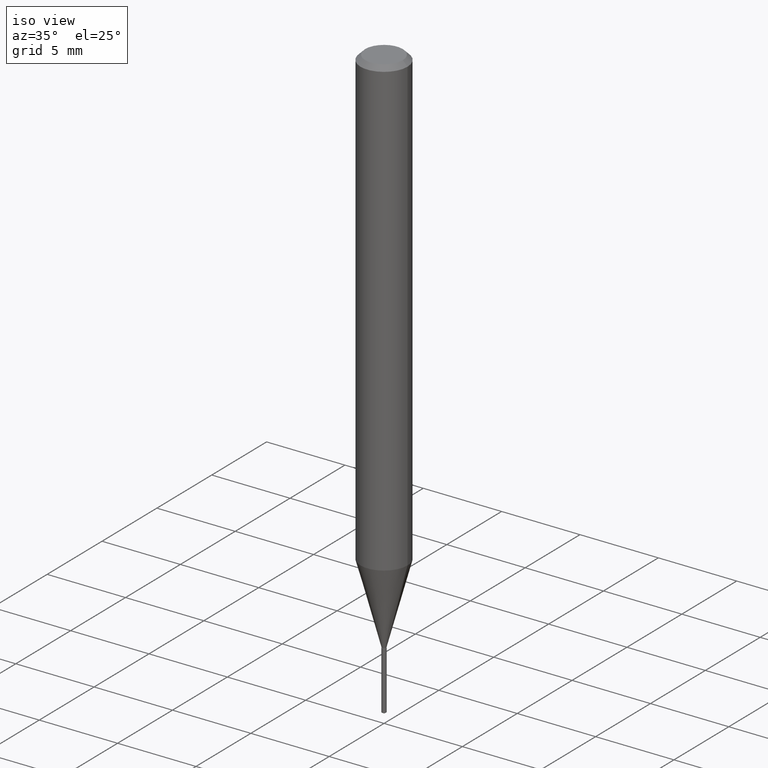
[diagram: clean part render]
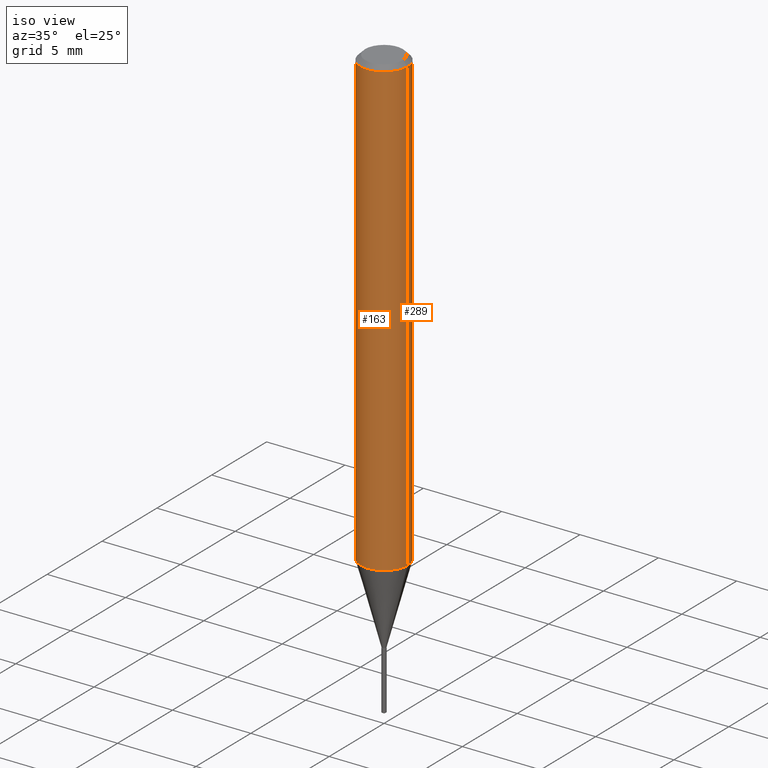
[diagram: same view with one multi-face feature highlighted, each face labeled with its STEP entity id]
A machine part, iso view. The highlighted faces form ONE feature: a constant-radius fillet chain: 2 tangent blend faces with common blend radius 1.4999 mm. The faces share edges in the B-rep.
Their STEP definitions:
[1] entity #163 (Cylinder):
#20 = CARTESIAN_POINT ( 'NONE',  ( 2.798355503914224078E-29, -3.995310018534680444E-15, -1.144302269093172786 ) ) ;
#39 = DIRECTION ( 'NONE',  ( -2.445468806185136597E-29, 3.491481338843145583E-15, 1.000000000000000000 ) ) ;
#40 = CARTESIAN_POINT ( 'NONE',  ( 0.000000000000000000, 0.000000000000000000, 0.000000000000000000 ) ) ;
#41 = DIRECTION ( 'NONE',  ( 1.000000000000000000, -6.982962677686266711E-15, 4.876176775795936353E-29 ) ) ;
#42 = CIRCLE ( 'NONE', #274, 0.05904999999999999832 ) ;
#48 = DIRECTION ( 'NONE',  ( -2.445468806185136877E-29, 3.491481338843145188E-15, 1.000000000000000000 ) ) ;
#72 = EDGE_CURVE ( 'NONE', #129, #396, #42, .T. ) ;
#81 = VERTEX_POINT ( 'NONE', #261 ) ;
#86 = AXIS2_PLACEMENT_3D ( 'NONE', #40, #297, #41 ) ;
#90 = FACE_OUTER_BOUND ( 'NONE', #460, .T. ) ;
#94 = CARTESIAN_POINT ( 'NONE',  ( -0.05905000000000013710, -3.575734533068340951E-15, -1.144302269093172786 ) ) ;
#129 = VERTEX_POINT ( 'NONE', #301 ) ;
#131 = AXIS2_PLACEMENT_3D ( 'NONE', #20, #247, #385 ) ;
#162 = LINE ( 'NONE', #311, #400 ) ;
#163 = ADVANCED_FACE ( 'NONE', ( #90 ), #376, .T. ) ;
#182 = ORIENTED_EDGE ( 'NONE', *, *, #341, .T. ) ;
#223 = ORIENTED_EDGE ( 'NONE', *, *, #453, .F. ) ;
#224 = CIRCLE ( 'NONE', #131, 0.05905000000000013710 ) ;
#225 = EDGE_CURVE ( 'NONE', #81, #396, #395, .T. ) ;
#247 = DIRECTION ( 'NONE',  ( -2.445468806185136597E-29, 3.491481338843145583E-15, 1.000000000000000000 ) ) ;
#261 = CARTESIAN_POINT ( 'NONE',  ( 0.05905000000000013710, -4.407653964652056153E-15, -1.144302269093172786 ) ) ;
#265 = ORIENTED_EDGE ( 'NONE', *, *, #72, .F. ) ;
#271 = CARTESIAN_POINT ( 'NONE',  ( 0.05905000000000006771, -4.123439461173745257E-16, 2.879382386107503723E-30 ) ) ;
#274 = AXIS2_PLACEMENT_3D ( 'NONE', #454, #39, #381 ) ;
#297 = DIRECTION ( 'NONE',  ( -2.445468806185136597E-29, 3.491481338843145583E-15, 1.000000000000000000 ) ) ;
#301 = CARTESIAN_POINT ( 'NONE',  ( -0.05904999999999999832, -1.598696721106868410E-15, -0.01181000000000007044 ) ) ;
#311 = CARTESIAN_POINT ( 'NONE',  ( -0.05905000000000006771, 4.195754854663396409E-16, -2.904631170795525045E-30 ) ) ;
#328 = ORIENTED_EDGE ( 'NONE', *, *, #225, .T. ) ;
#341 = EDGE_CURVE ( 'NONE', #413, #81, #224, .T. ) ;
#376 = CYLINDRICAL_SURFACE ( 'NONE', #86, 0.05905000000000006771 ) ;
#381 = DIRECTION ( 'NONE',  ( 1.000000000000000000, -6.982962677686266711E-15, 0.000000000000000000 ) ) ;
#385 = DIRECTION ( 'NONE',  ( 1.000000000000000000, -6.982962677686264344E-15, 0.000000000000000000 ) ) ;
#395 = LINE ( 'NONE', #271, #448 ) ;
#396 = VERTEX_POINT ( 'NONE', #426 ) ;
#400 = VECTOR ( 'NONE', #472, 39.37007874015748143 ) ;
#413 = VERTEX_POINT ( 'NONE', #94 ) ;
#426 = CARTESIAN_POINT ( 'NONE',  ( 0.05904999999999999832, -4.535783407291118600E-16, -0.01181000000000007044 ) ) ;
#448 = VECTOR ( 'NONE', #48, 39.37007874015748143 ) ;
#453 = EDGE_CURVE ( 'NONE', #413, #129, #162, .T. ) ;
#454 = CARTESIAN_POINT ( 'NONE',  ( 2.888098660104663766E-31, -4.123439461173779647E-17, -0.01181000000000007044 ) ) ;
#460 = EDGE_LOOP ( 'NONE', ( #223, #182, #328, #265 ) ) ;
#472 = DIRECTION ( 'NONE',  ( -2.445468806185136877E-29, 3.491481338843145188E-15, 1.000000000000000000 ) ) ;
[2] entity #289 (Cylinder):
#15 = ORIENTED_EDGE ( 'NONE', *, *, #225, .F. ) ;
#19 = CIRCLE ( 'NONE', #147, 0.05905000000000013710 ) ;
#36 = FACE_OUTER_BOUND ( 'NONE', #409, .T. ) ;
#48 = DIRECTION ( 'NONE',  ( -2.445468806185136877E-29, 3.491481338843145188E-15, 1.000000000000000000 ) ) ;
#81 = VERTEX_POINT ( 'NONE', #261 ) ;
#94 = CARTESIAN_POINT ( 'NONE',  ( -0.05905000000000013710, -3.575734533068340951E-15, -1.144302269093172786 ) ) ;
#120 = EDGE_CURVE ( 'NONE', #396, #129, #239, .T. ) ;
#129 = VERTEX_POINT ( 'NONE', #301 ) ;
#147 = AXIS2_PLACEMENT_3D ( 'NONE', #477, #394, #278 ) ;
#156 = DIRECTION ( 'NONE',  ( 1.000000000000000000, -6.982962677686266711E-15, 0.000000000000000000 ) ) ;
#162 = LINE ( 'NONE', #311, #400 ) ;
#186 = CYLINDRICAL_SURFACE ( 'NONE', #322, 0.05905000000000006771 ) ;
#225 = EDGE_CURVE ( 'NONE', #81, #396, #395, .T. ) ;
#239 = CIRCLE ( 'NONE', #489, 0.05904999999999999832 ) ;
#256 = DIRECTION ( 'NONE',  ( -2.445468806185136597E-29, 3.491481338843145583E-15, 1.000000000000000000 ) ) ;
#261 = CARTESIAN_POINT ( 'NONE',  ( 0.05905000000000013710, -4.407653964652056153E-15, -1.144302269093172786 ) ) ;
#268 = DIRECTION ( 'NONE',  ( -2.445468806185136597E-29, 3.491481338843145583E-15, 1.000000000000000000 ) ) ;
#271 = CARTESIAN_POINT ( 'NONE',  ( 0.05905000000000006771, -4.123439461173745257E-16, 2.879382386107503723E-30 ) ) ;
#278 = DIRECTION ( 'NONE',  ( 1.000000000000000000, -6.982962677686264344E-15, 0.000000000000000000 ) ) ;
#289 = ADVANCED_FACE ( 'NONE', ( #36 ), #186, .T. ) ;
#291 = ORIENTED_EDGE ( 'NONE', *, *, #453, .T. ) ;
#301 = CARTESIAN_POINT ( 'NONE',  ( -0.05904999999999999832, -1.598696721106868410E-15, -0.01181000000000007044 ) ) ;
#311 = CARTESIAN_POINT ( 'NONE',  ( -0.05905000000000006771, 4.195754854663396409E-16, -2.904631170795525045E-30 ) ) ;
#312 = ORIENTED_EDGE ( 'NONE', *, *, #120, .F. ) ;
#322 = AXIS2_PLACEMENT_3D ( 'NONE', #451, #256, #441 ) ;
#380 = EDGE_CURVE ( 'NONE', #81, #413, #19, .T. ) ;
#394 = DIRECTION ( 'NONE',  ( -2.445468806185136597E-29, 3.491481338843145583E-15, 1.000000000000000000 ) ) ;
#395 = LINE ( 'NONE', #271, #448 ) ;
#396 = VERTEX_POINT ( 'NONE', #426 ) ;
#400 = VECTOR ( 'NONE', #472, 39.37007874015748143 ) ;
#409 = EDGE_LOOP ( 'NONE', ( #490, #291, #312, #15 ) ) ;
#413 = VERTEX_POINT ( 'NONE', #94 ) ;
#417 = CARTESIAN_POINT ( 'NONE',  ( 2.888098660104663766E-31, -4.123439461173779647E-17, -0.01181000000000007044 ) ) ;
#426 = CARTESIAN_POINT ( 'NONE',  ( 0.05904999999999999832, -4.535783407291118600E-16, -0.01181000000000007044 ) ) ;
#441 = DIRECTION ( 'NONE',  ( 1.000000000000000000, -6.982962677686266711E-15, 4.876176775795936353E-29 ) ) ;
#448 = VECTOR ( 'NONE', #48, 39.37007874015748143 ) ;
#451 = CARTESIAN_POINT ( 'NONE',  ( 0.000000000000000000, 0.000000000000000000, 0.000000000000000000 ) ) ;
#453 = EDGE_CURVE ( 'NONE', #413, #129, #162, .T. ) ;
#472 = DIRECTION ( 'NONE',  ( -2.445468806185136877E-29, 3.491481338843145188E-15, 1.000000000000000000 ) ) ;
#477 = CARTESIAN_POINT ( 'NONE',  ( 2.798355503914224078E-29, -3.995310018534680444E-15, -1.144302269093172786 ) ) ;
#489 = AXIS2_PLACEMENT_3D ( 'NONE', #417, #268, #156 ) ;
#490 = ORIENTED_EDGE ( 'NONE', *, *, #380, .T. ) ;